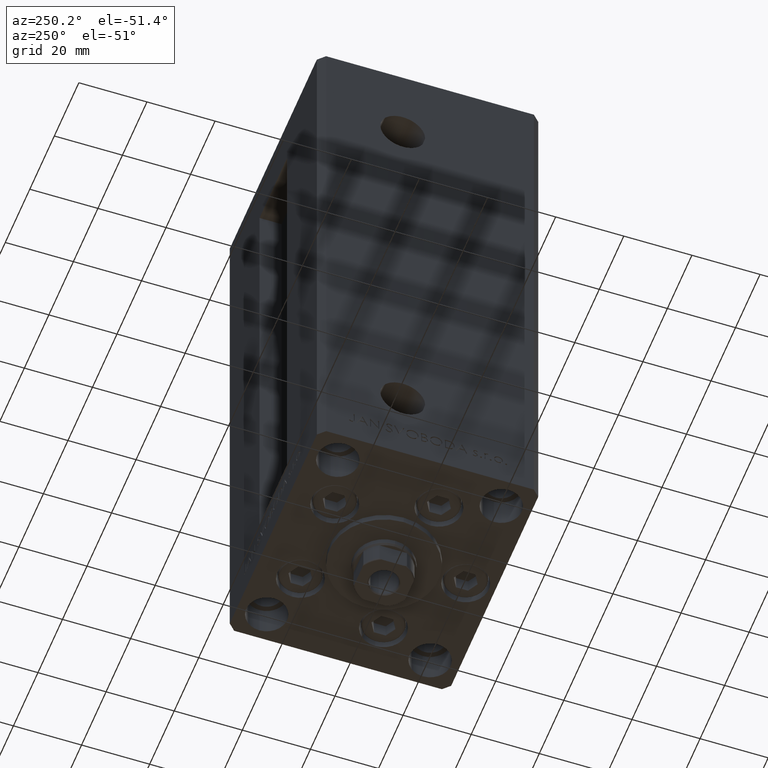
[diagram: clean part render]
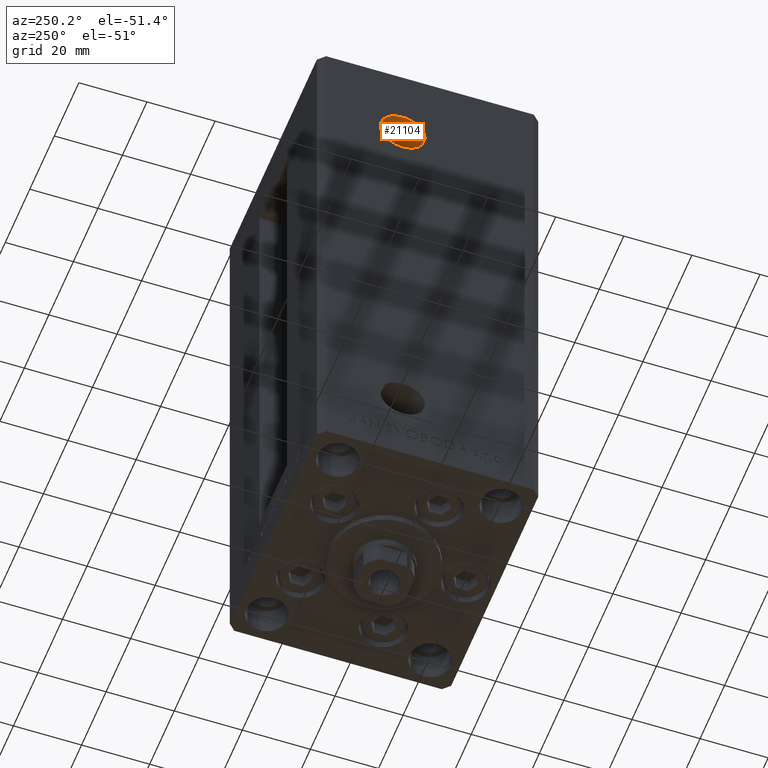
[diagram: same view with one face highlighted and labeled with its STEP entity id]
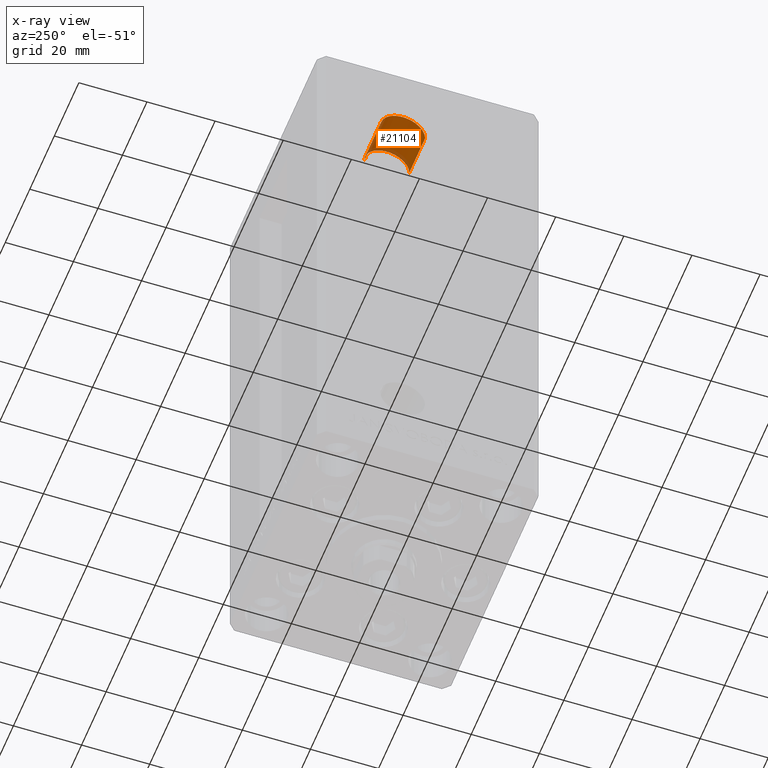
[diagram: x-ray of the same camera — body ghosted, the highlighted face saturated]
A machine part, auxiliary view. The second image highlights one B-rep face of the part: STEP entity #21104.
The next image is the same camera in x-ray: the body ghosted, the highlighted face saturated — about 9% of this face is hidden behind the body in this view.
In plain terms, the highlighted cylindrical surface (edge-blend (fillet) strip) has radius 6.58 mm, axis along (-1, -0, -0).
Its self-contained STEP definition (entity closure, byte-faithful):
#670 = EDGE_CURVE ( 'NONE', #26556, #9580, #42525, .T. ) ;
#3683 = CARTESIAN_POINT ( 'NONE',  ( -24.50000000000000000, 14.58000000000000895, 127.0000000000000000 ) ) ;
#3773 = AXIS2_PLACEMENT_3D ( 'NONE', #10911, #11396, #19209 ) ;
#3777 = AXIS2_PLACEMENT_3D ( 'NONE', #48930, #22327, #30353 ) ;
#5021 = VERTEX_POINT ( 'NONE', #40743 ) ;
#6222 = CIRCLE ( 'NONE', #3773, 6.580000000000015170 ) ;
#7119 = DIRECTION ( 'NONE',  ( -1.000000000000000000, -2.275047181608927644E-16, 0.000000000000000000 ) ) ;
#9580 = VERTEX_POINT ( 'NONE', #3683 ) ;
#10607 = DIRECTION ( 'NONE',  ( -1.000000000000000000, -2.275047181608927644E-16, -0.000000000000000000 ) ) ;
#10911 = CARTESIAN_POINT ( 'NONE',  ( -37.50000000000000000, 7.999999999999991118, 127.0000000000000000 ) ) ;
#11396 = DIRECTION ( 'NONE',  ( -1.000000000000000000, -2.275047181608927644E-16, 0.000000000000000000 ) ) ;
#16709 = EDGE_LOOP ( 'NONE', ( #32929, #41907, #24573, #45699 ) ) ;
#17394 = VECTOR ( 'NONE', #40361, 1000.000000000000000 ) ;
#19209 = DIRECTION ( 'NONE',  ( 0.000000000000000000, -1.000000000000000000, 0.000000000000000000 ) ) ;
#20959 = VECTOR ( 'NONE', #10607, 1000.000000000000000 ) ;
#21104 = ADVANCED_FACE ( 'NONE', ( #45895 ), #25846, .F. ) ;
#22327 = DIRECTION ( 'NONE',  ( -1.000000000000000000, -2.275047181608927644E-16, -0.000000000000000000 ) ) ;
#23564 = EDGE_CURVE ( 'NONE', #26556, #26176, #48635, .T. ) ;
#24573 = ORIENTED_EDGE ( 'NONE', *, *, #23564, .T. ) ;
#24739 = CARTESIAN_POINT ( 'NONE',  ( -24.50000000000000000, 7.999999999999994671, 127.0000000000000000 ) ) ;
#25606 = EDGE_CURVE ( 'NONE', #26176, #5021, #6222, .T. ) ;
#25698 = CARTESIAN_POINT ( 'NONE',  ( -24.50000000000000000, 14.58000000000000895, 127.0000000000000000 ) ) ;
#25807 = CARTESIAN_POINT ( 'NONE',  ( -24.50000000000000000, 1.419999999999979501, 127.0000000000000000 ) ) ;
#25846 = CYLINDRICAL_SURFACE ( 'NONE', #3777, 6.580000000000015170 ) ;
#26176 = VERTEX_POINT ( 'NONE', #44456 ) ;
#26556 = VERTEX_POINT ( 'NONE', #48404 ) ;
#29005 = DIRECTION ( 'NONE',  ( 0.000000000000000000, -1.000000000000000000, 0.000000000000000000 ) ) ;
#29718 = LINE ( 'NONE', #25698, #20959 ) ;
#30353 = DIRECTION ( 'NONE',  ( 0.000000000000000000, -1.000000000000000000, 0.000000000000000000 ) ) ;
#32929 = ORIENTED_EDGE ( 'NONE', *, *, #47241, .F. ) ;
#40125 = AXIS2_PLACEMENT_3D ( 'NONE', #24739, #7119, #29005 ) ;
#40361 = DIRECTION ( 'NONE',  ( -1.000000000000000000, -2.275047181608927644E-16, -0.000000000000000000 ) ) ;
#40743 = CARTESIAN_POINT ( 'NONE',  ( -37.50000000000000000, 14.58000000000000718, 127.0000000000000000 ) ) ;
#41907 = ORIENTED_EDGE ( 'NONE', *, *, #670, .F. ) ;
#42525 = CIRCLE ( 'NONE', #40125, 6.580000000000015170 ) ;
#44456 = CARTESIAN_POINT ( 'NONE',  ( -37.50000000000000000, 1.419999999999975948, 127.0000000000000000 ) ) ;
#45699 = ORIENTED_EDGE ( 'NONE', *, *, #25606, .T. ) ;
#45895 = FACE_OUTER_BOUND ( 'NONE', #16709, .T. ) ;
#47241 = EDGE_CURVE ( 'NONE', #9580, #5021, #29718, .T. ) ;
#48404 = CARTESIAN_POINT ( 'NONE',  ( -24.50000000000000000, 1.419999999999979501, 127.0000000000000000 ) ) ;
#48635 = LINE ( 'NONE', #25807, #17394 ) ;
#48930 = CARTESIAN_POINT ( 'NONE',  ( -24.50000000000000000, 7.999999999999994671, 127.0000000000000000 ) ) ;